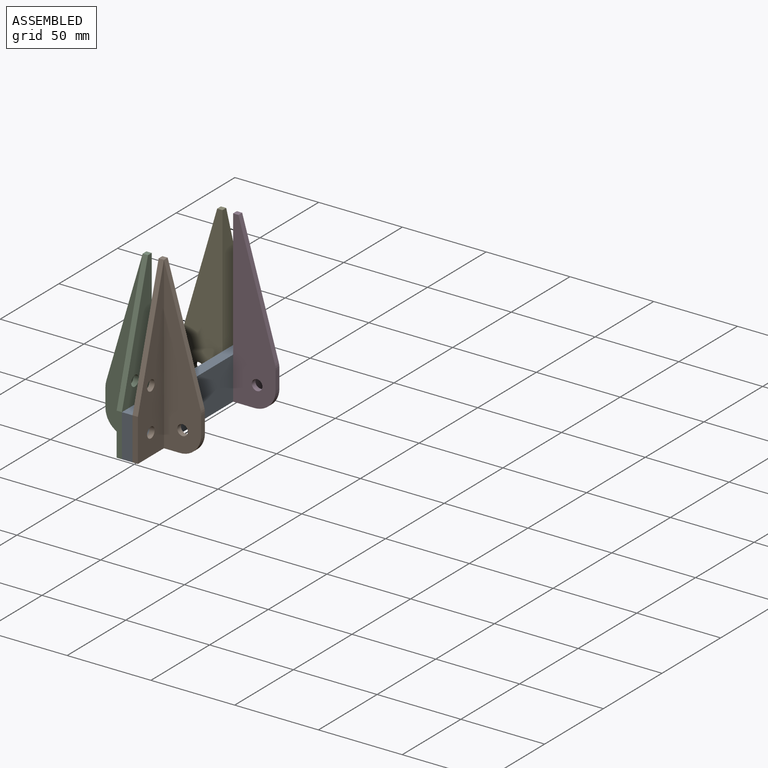
[diagram: assembled view]
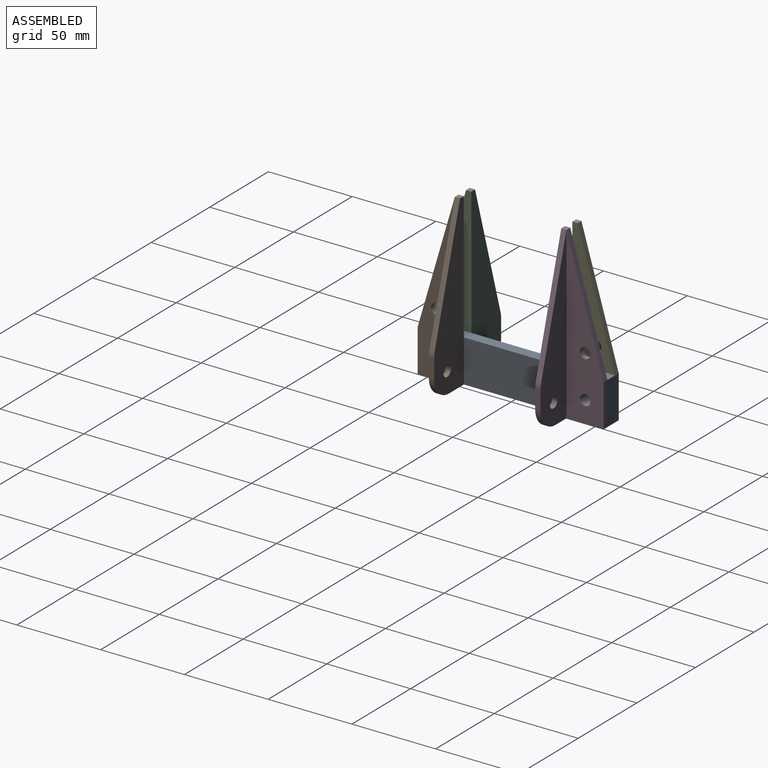
[diagram: assembled view, second angle]
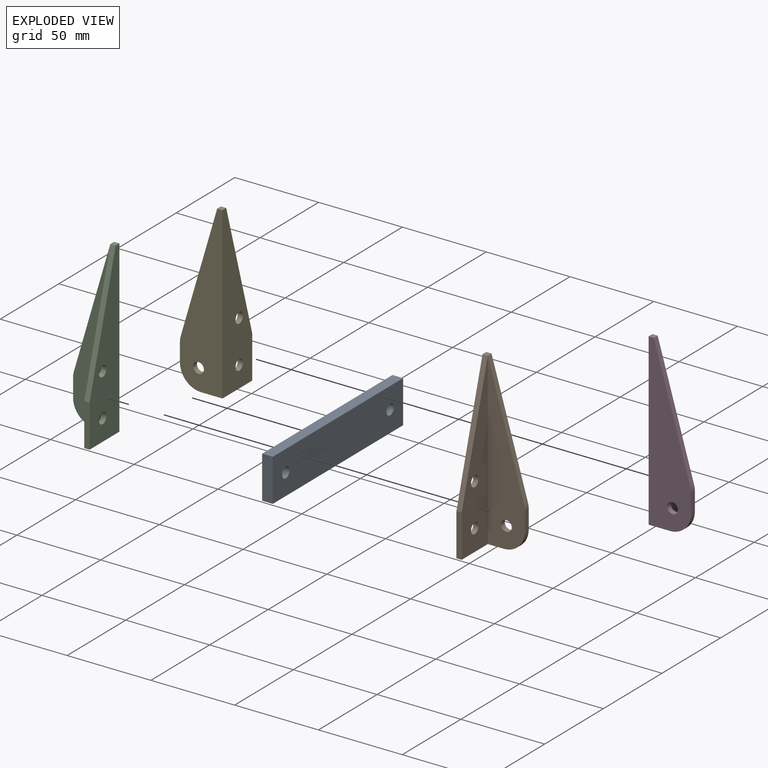
[diagram: exploded view]
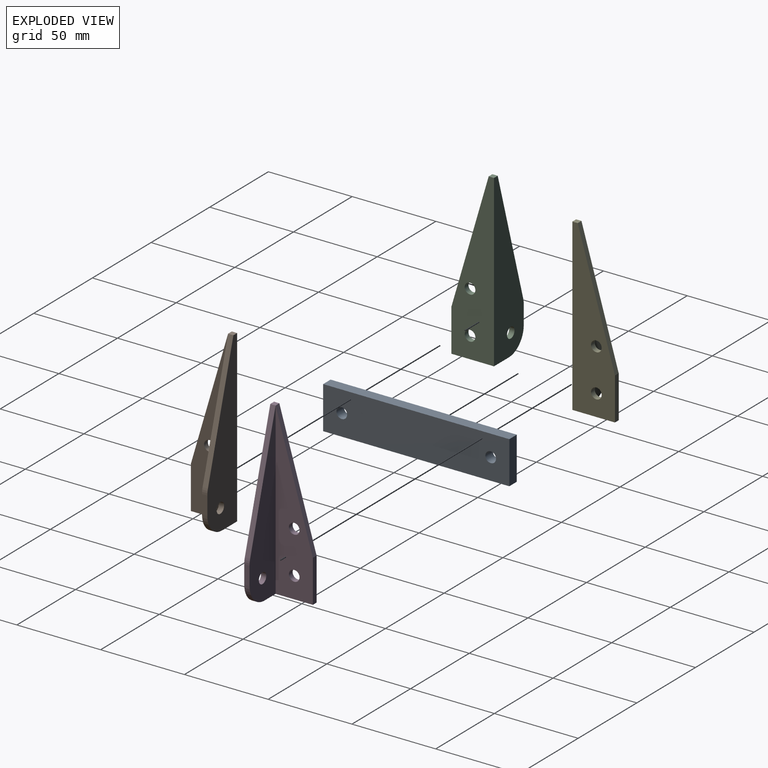
[diagram: exploded view, second angle]
ASSEMBLY  parts=5 mates=4
PART A: 8 faces, bbox 6.4x111.1x25.4 mm
  f0: plane 111.13x25.4mm, normal (-1,0,0), area 2759.2mm2, adj f2,f3,f4,f5,f6,f7
  f1: plane 111.13x25.4mm, normal (1,0,0), area 2759.2mm2, adj f2,f3,f4,f5,f6,f7
  f2: plane 25.4x6.35mm, normal (0,1,0), area 161.3mm2, adj f0,f1,f4,f5
  f3: plane 25.4x6.35mm, normal (0,-1,0), area 161.3mm2, adj f0,f1,f4,f5
  f4: plane 111.13x6.35mm, normal (0,0,1), area 705.6mm2, adj f0,f1,f2,f3
  f5: plane 111.13x6.35mm, normal (0,0,-1), area 705.6mm2, adj f0,f1,f2,f3
  f6: cylinder r=3.17mm len=6.35mm, axis (-1,0,0), area 126.7mm2, adj f0,f1
  f7: cylinder r=3.17mm len=6.35mm, axis (-1,0,0), area 126.7mm2, adj f0,f1
PART B: 15 faces, bbox 25.4x25.4x101.6 mm
  f0: plane 3.18x3.18mm, normal (0,0,1), area 10.1mm2, adj f3,f4,f9,f13
  f1: plane 10.89x3.18mm, normal (1,0,0), area 34.6mm2, adj f3,f7,f10,f11
  f2: plane 25.4x12.7mm, normal (0,0,-1), area 110.9mm2, adj f3,f4,f5,f6,f7,f11
  f3: plane 101.6x25.4mm, normal (0,1,0), area 1667.4mm2, adj f0,f1,f2,f4,f8,f9,f10,f11
  f4: plane 101.6x25.4mm, normal (-1,0,0), area 1670.5mm2, adj f0,f2,f3,f5,f12,f13,f14
  f5: plane 25.4x3.18mm, normal (0,-1,0), area 80.6mm2, adj f2,f4,f6,f13
  f6: plane 101.6x22.23mm, normal (1,0,0), area 1347.9mm2, adj f2,f5,f7,f12,f13,f14
  f7: plane 101.6x22.23mm, normal (0,-1,0), area 1344.9mm2, adj f1,f2,f6,f8,f9,f10,f11
  f8: cylinder r=3.17mm len=6.35mm, axis (0,1,0), area 63.3mm2, adj f3,f7
  f9: plane 74.46x21.72mm, normal (0.96,0,0.28), area 246.3mm2, adj f0,f3,f7,f10
  f10: cylinder r=12.7mm len=3.56mm, axis (0,1,0), area 11.4mm2, adj f1,f3,f7,f9
  f11: cylinder r=12.7mm len=12.7mm, axis (0,1,0), area 63.3mm2, adj f1,f2,f3,f7
  f12: cylinder r=3.17mm len=6.35mm, axis (-1,0,0), area 63.3mm2, adj f4,f6
  f13: plane 76.2x22.23mm, normal (0,-0.96,0.28), area 252mm2, adj f0,f4,f5,f6
  f14: cylinder r=3.17mm len=6.35mm, axis (-1,0,0), area 63.3mm2, adj f4,f6
PART C: 15 faces, bbox 25.4x25.4x101.6 mm
  f0: plane 25.4x3.18mm, normal (0,-1,0), area 80.6mm2, adj f4,f5,f7,f13
  f1: plane 101.6x25.4mm, normal (0,1,0), area 1667.4mm2, adj f2,f5,f6,f7,f8,f9,f10,f11
  f2: plane 10.89x3.18mm, normal (-1,0,0), area 34.6mm2, adj f1,f3,f8,f11
  f3: plane 101.6x22.23mm, normal (0,-1,0), area 1344.9mm2, adj f2,f4,f7,f8,f9,f10,f11
  f4: plane 101.6x22.23mm, normal (-1,0,0), area 1347.9mm2, adj f0,f3,f7,f12,f13,f14
  f5: plane 101.6x25.4mm, normal (1,0,0), area 1670.5mm2, adj f0,f1,f6,f7,f12,f13,f14
  f6: plane 3.18x3.18mm, normal (0,0,1), area 10.1mm2, adj f1,f5,f10,f13
  f7: plane 25.4x12.7mm, normal (0,0,-1), area 110.9mm2, adj f0,f1,f3,f4,f5,f8
  f8: cylinder r=12.7mm len=12.7mm, axis (0,1,0), area 63.3mm2, adj f1,f2,f3,f7
  f9: cylinder r=3.17mm len=6.35mm, axis (0,1,0), area 63.3mm2, adj f1,f3
  f10: plane 74.46x21.72mm, normal (-0.96,0,0.28), area 246.3mm2, adj f1,f3,f6,f11
  f11: cylinder r=12.7mm len=3.56mm, axis (0,1,0), area 11.4mm2, adj f1,f2,f3,f10
  f12: cylinder r=3.17mm len=6.35mm, axis (-1,0,0), area 63.3mm2, adj f4,f5
  f13: plane 76.2x22.23mm, normal (0,-0.96,0.28), area 252mm2, adj f0,f4,f5,f6
  f14: cylinder r=3.17mm len=6.35mm, axis (-1,0,0), area 63.3mm2, adj f4,f5
PART D: 15 faces, bbox 25.4x25.4x101.6 mm
  f0: plane 3.18x3.18mm, normal (0,0,1), area 10.1mm2, adj f6,f7,f9,f14
  f1: plane 10.89x3.18mm, normal (1,0,0), area 34.6mm2, adj f3,f7,f10,f11
  f2: plane 25.4x12.7mm, normal (0,0,-1), area 110.9mm2, adj f3,f4,f5,f6,f7,f11
  f3: plane 101.6x22.23mm, normal (0,1,0), area 1344.9mm2, adj f1,f2,f4,f8,f9,f10,f11
  f4: plane 101.6x22.23mm, normal (1,0,0), area 1347.9mm2, adj f2,f3,f5,f12,f13,f14
  f5: plane 25.4x3.18mm, normal (0,1,0), area 80.6mm2, adj f2,f4,f6,f14
  f6: plane 101.6x25.4mm, normal (-1,0,0), area 1670.5mm2, adj f0,f2,f5,f7,f12,f13,f14
  f7: plane 101.6x25.4mm, normal (0,-1,0), area 1667.4mm2, adj f0,f1,f2,f6,f8,f9,f10,f11
  f8: cylinder r=3.17mm len=6.35mm, axis (0,1,0), area 63.3mm2, adj f3,f7
  f9: plane 74.46x21.72mm, normal (0.96,0,0.28), area 246.3mm2, adj f0,f3,f7,f10
  f10: cylinder r=12.7mm len=3.56mm, axis (0,1,0), area 11.4mm2, adj f1,f3,f7,f9
  f11: cylinder r=12.7mm len=12.7mm, axis (0,1,0), area 63.3mm2, adj f1,f2,f3,f7
  f12: cylinder r=3.17mm len=6.35mm, axis (-1,0,0), area 63.3mm2, adj f4,f6
  f13: cylinder r=3.17mm len=6.35mm, axis (-1,0,0), area 63.3mm2, adj f4,f6
  f14: plane 76.2x22.23mm, normal (0,0.96,0.28), area 252mm2, adj f0,f4,f5,f6
PART E: 15 faces, bbox 25.4x25.4x101.6 mm
  f0: plane 25.4x3.18mm, normal (0,1,0), area 80.6mm2, adj f5,f6,f7,f14
  f1: plane 3.18x3.18mm, normal (0,0,1), area 10.1mm2, adj f4,f5,f10,f14
  f2: plane 101.6x22.23mm, normal (0,1,0), area 1344.9mm2, adj f3,f6,f7,f8,f9,f10,f11
  f3: plane 10.89x3.18mm, normal (-1,0,0), area 34.6mm2, adj f2,f4,f8,f11
  f4: plane 101.6x25.4mm, normal (0,-1,0), area 1667.4mm2, adj f1,f3,f5,f7,f8,f9,f10,f11
  f5: plane 101.6x25.4mm, normal (1,0,0), area 1670.5mm2, adj f0,f1,f4,f7,f12,f13,f14
  f6: plane 101.6x22.23mm, normal (-1,0,0), area 1347.9mm2, adj f0,f2,f7,f12,f13,f14
  f7: plane 25.4x12.7mm, normal (0,0,-1), area 110.9mm2, adj f0,f2,f4,f5,f6,f8
  f8: cylinder r=12.7mm len=12.7mm, axis (0,1,0), area 63.3mm2, adj f2,f3,f4,f7
  f9: cylinder r=3.17mm len=6.35mm, axis (0,1,0), area 63.3mm2, adj f2,f4
  f10: plane 74.46x21.72mm, normal (-0.96,0,0.28), area 246.3mm2, adj f1,f2,f4,f11
  f11: cylinder r=12.7mm len=3.56mm, axis (0,1,0), area 11.4mm2, adj f2,f3,f4,f10
  f12: cylinder r=3.17mm len=6.35mm, axis (-1,0,0), area 63.3mm2, adj f5,f6
  f13: cylinder r=3.17mm len=6.35mm, axis (-1,0,0), area 63.3mm2, adj f5,f6
  f14: plane 76.2x22.23mm, normal (0,0.96,0.28), area 252mm2, adj f0,f1,f5,f6
PLACE A t=(-52.13,-47.34,-0.06)mm
PLACE B t=(-52.13,-47.34,-0.06)mm
PLACE C t=(-52.13,-47.34,-0.06)mm
PLACE D t=(-52.13,-47.34,-0.06)mm
PLACE E t=(-52.13,-47.34,-0.06)mm
MATE fastened A.f6 <-> B.f12  axis (1,0,0) through (-48.96,-91.79,12.64)mm
MATE fastened D.f13 <-> A.f7  axis (-1,0,0) through (-48.96,-2.89,12.64)mm
MATE fastened C.f12 <-> A.f6  axis (1,0,0) through (-55.31,-91.79,12.64)mm
MATE fastened E.f13 <-> A.f7  axis (1,0,0) through (-55.31,-2.89,12.64)mm
